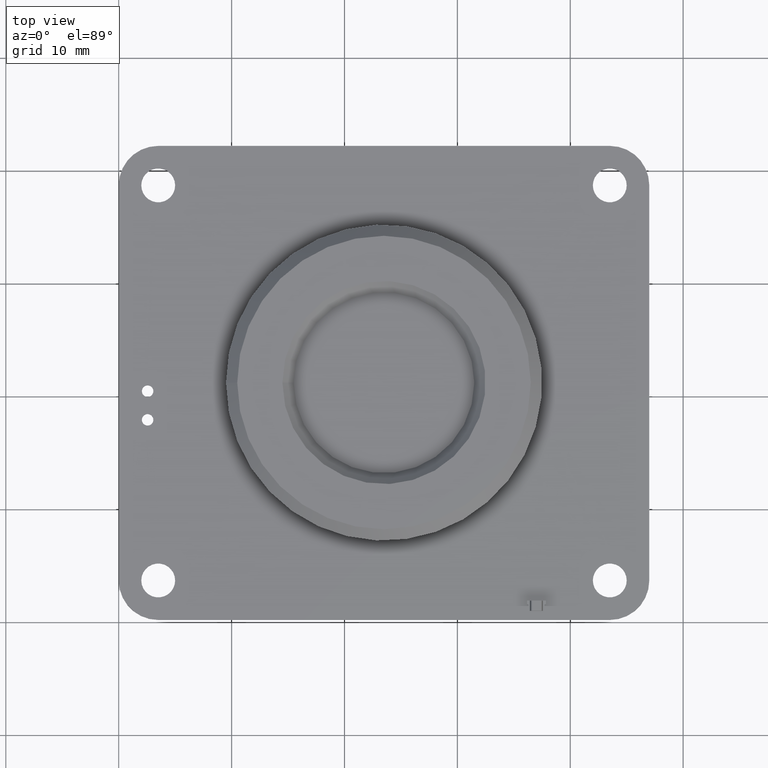
[diagram: clean part render]
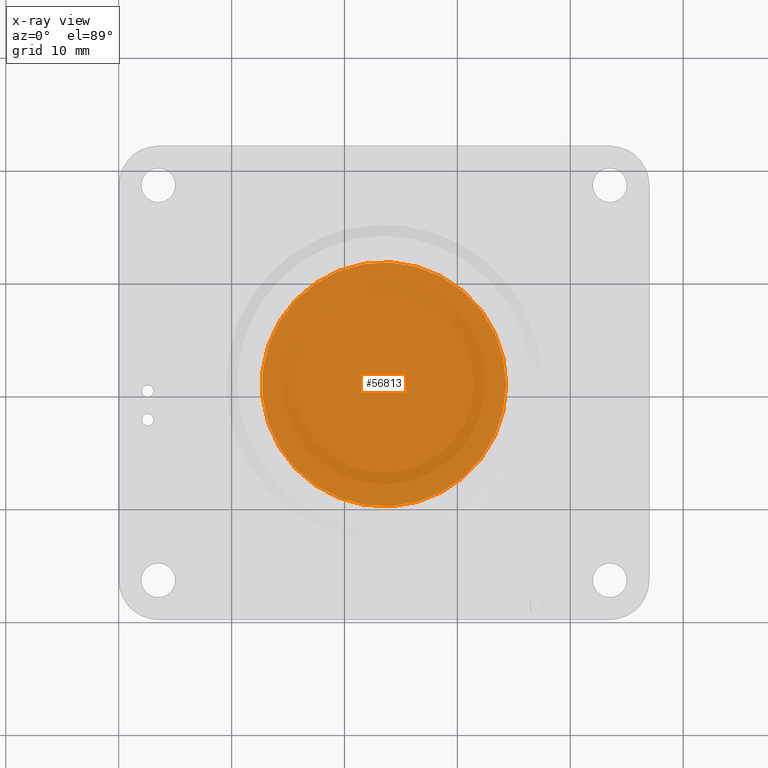
[diagram: x-ray — body ghosted, one internal face saturated and labeled with its STEP entity id]
A machine part, top view, then the same camera in x-ray: the body is ghosted and one INTERNAL B-rep face — a face not visible from any outside direction — is saturated and labeled: STEP entity #56813.
In plain terms, the highlighted planar face has unit normal (-0, 0, 1).
Its self-contained STEP definition (entity closure, byte-faithful):
#56784 = EDGE_CURVE('',#56785,#56785,#56787,.T.);
#56785 = VERTEX_POINT('',#56786);
#56786 = CARTESIAN_POINT('',(-10.81665398757,5.,1.324658068337E-15));
#56787 = CIRCLE('',#56788,10.816653987573);
#56788 = AXIS2_PLACEMENT_3D('',#56789,#56790,#56791);
#56789 = CARTESIAN_POINT('',(0.,5.,0.));
#56790 = DIRECTION('',(-0.,1.,0.));
#56791 = DIRECTION('',(1.,0.,0.));
#56813 = ADVANCED_FACE('',(#56814),#56817,.T.);
#56814 = FACE_BOUND('',#56815,.T.);
#56815 = EDGE_LOOP('',(#56816));
#56816 = ORIENTED_EDGE('',*,*,#56784,.T.);
#56817 = PLANE('',#56818);
#56818 = AXIS2_PLACEMENT_3D('',#56819,#56820,#56821);
#56819 = CARTESIAN_POINT('',(0.,5.,0.));
#56820 = DIRECTION('',(0.,1.,0.));
#56821 = DIRECTION('',(1.,0.,0.));